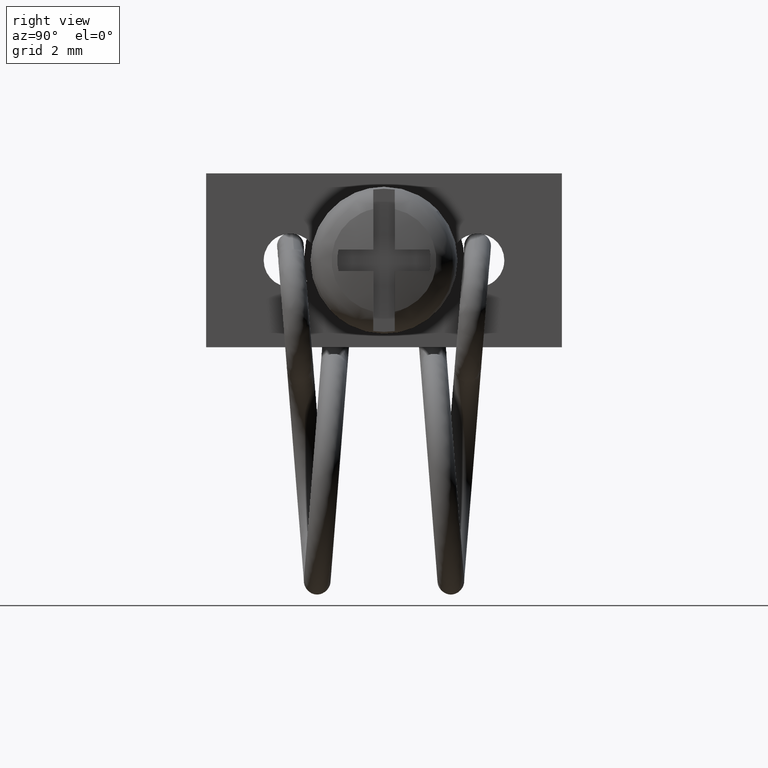
[diagram: clean part render]
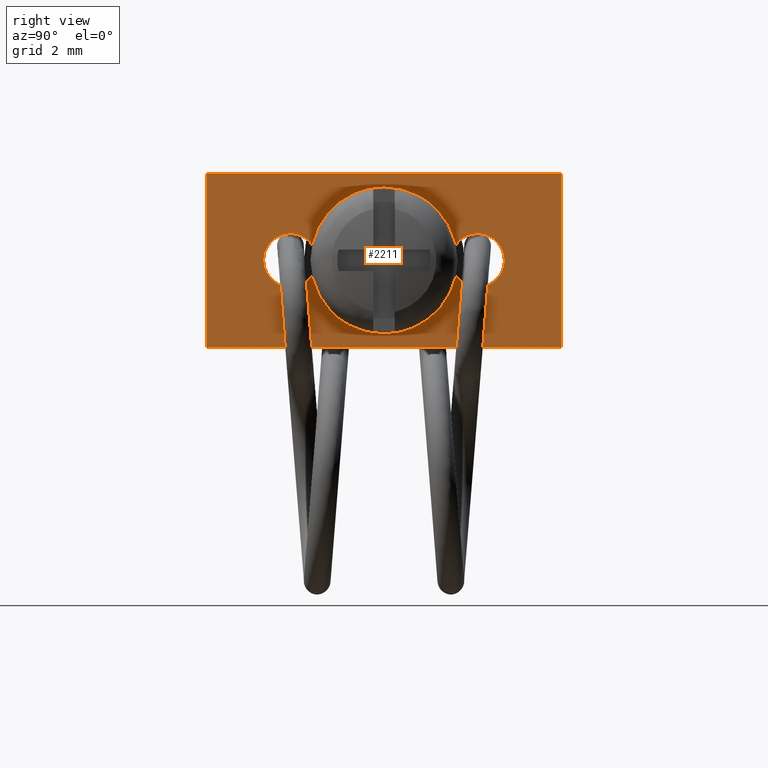
[diagram: same view with one face highlighted and labeled with its STEP entity id]
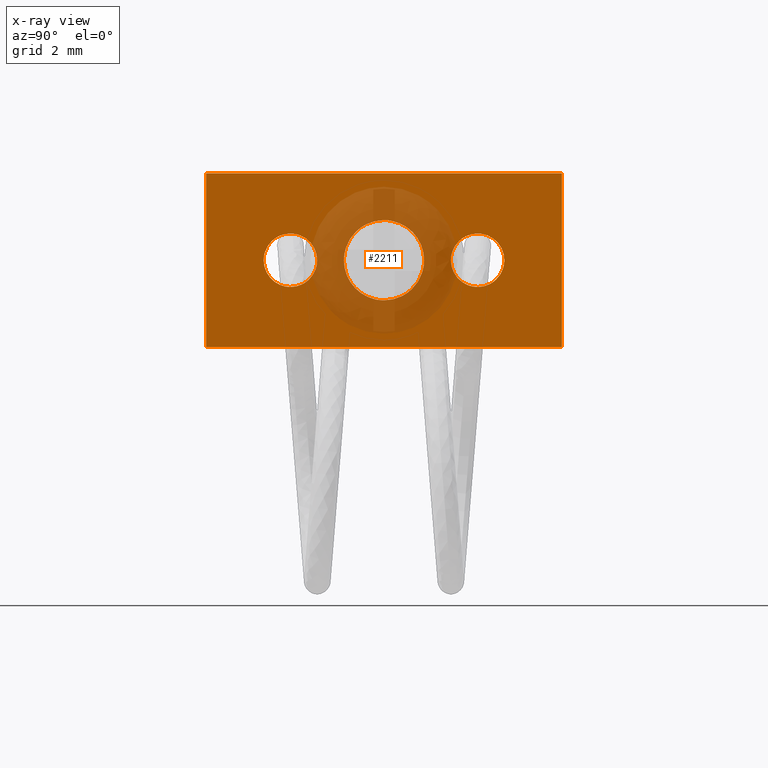
[diagram: x-ray of the same camera — body ghosted, the highlighted face saturated]
A machine part, right view. The second image highlights one B-rep face of the part: STEP entity #2211.
The next image is the same camera in x-ray: the body ghosted, the highlighted face saturated — about 22% of this face is hidden behind the body in this view.
In plain terms, the highlighted face is a freeform B-spline surface patch.
Its self-contained STEP definition (entity closure, byte-faithful):
#1553=CARTESIAN_POINT('',(-5.900000000000803,-1.032531800917459,1.088061519046354));
#1554=VERTEX_POINT('',#1553);
#1555=CARTESIAN_POINT('',(-5.900000000000000,-1.499999999999974,-0.000000281538430));
#1556=VERTEX_POINT('',#1555);
#1557=CARTESIAN_POINT('',(-5.900000000000803,-1.032531800917459,1.088061519046354));
#1558=CARTESIAN_POINT('',(-5.900000000000751,-1.101527649924507,1.022601850575404));
#1559=CARTESIAN_POINT('',(-5.900000000000656,-1.231182816334653,0.873691384280088));
#1560=CARTESIAN_POINT('',(-5.900000000000412,-1.386354415331849,0.602685362621365));
#1561=CARTESIAN_POINT('',(-5.900000000000290,-1.480044464424608,0.304338985804789));
#1562=CARTESIAN_POINT('',(-5.900000000000042,-1.500008408886573,0.095106643470198));
#1563=CARTESIAN_POINT('',(-5.900000000000000,-1.499999999999974,-0.000000281538430));
#1564=B_SPLINE_CURVE_WITH_KNOTS('',3,(#1557,#1558,#1559,#1560,#1561,#1562,#1563),.UNSPECIFIED.,.F.,.U.,(4,1,1,1,4),(7.158372E-009,0.285322418852800,0.589669938008324,0.932053386780087,1.217375582058588),.UNSPECIFIED.);
#1565=EDGE_CURVE('',#1554,#1556,#1564,.T.);
#1567=CARTESIAN_POINT('',(-5.900000000000000,0.0,-1.500000000000171));
#1568=VERTEX_POINT('',#1567);
#1569=CARTESIAN_POINT('',(-5.900000000000000,-1.499999999999974,-0.000000281538430));
#1570=CARTESIAN_POINT('',(-5.899999999999992,-1.500113129951142,-0.165688642252088));
#1571=CARTESIAN_POINT('',(-5.900000000000005,-1.461998231465147,-0.392646179399904));
#1572=CARTESIAN_POINT('',(-5.900000000000000,-1.339630095209663,-0.687975175501430));
#1573=CARTESIAN_POINT('',(-5.899999999999995,-1.189265077941649,-0.935499621042417));
#1574=CARTESIAN_POINT('',(-5.900000000000016,-0.955745503571000,-1.174807177737116));
#1575=CARTESIAN_POINT('',(-5.899999999999934,-0.683640507078563,-1.344742847117137));
#1576=CARTESIAN_POINT('',(-5.900000000000049,-0.374255342562318,-1.466285730741364));
#1577=CARTESIAN_POINT('',(-5.900000000000031,-0.147270636657687,-1.500063735951231));
#1578=CARTESIAN_POINT('',(-5.900000000000000,0.0,-1.500000000000171));
#1579=B_SPLINE_CURVE_WITH_KNOTS('',3,(#1569,#1570,#1571,#1572,#1573,#1574,#1575,#1576,#1577,#1578),.UNSPECIFIED.,.F.,.U.,(4,1,1,1,1,1,1,4),(0.000000025053693,0.497012994615959,0.681092243780764,0.957217229063044,1.362180125260239,1.675117438829984,1.914422860658952,2.356209115633355),.UNSPECIFIED.);
#1580=EDGE_CURVE('',#1556,#1568,#1579,.T.);
#1582=CARTESIAN_POINT('',(-5.900000000000803,1.032531800917457,-1.088061519046693));
#1583=VERTEX_POINT('',#1582);
#1584=CARTESIAN_POINT('',(-5.900000000000000,0.0,-1.500000000000171));
#1585=CARTESIAN_POINT('',(-5.900000000000067,0.088970957304148,-1.500007292996904));
#1586=CARTESIAN_POINT('',(-5.900000000000225,0.284704585115772,-1.482541028248960));
#1587=CARTESIAN_POINT('',(-5.900000000000445,0.565240062393512,-1.400457558483342));
#1588=CARTESIAN_POINT('',(-5.900000000000635,0.823325914155499,-1.263974881436297));
#1589=CARTESIAN_POINT('',(-5.900000000000764,0.967999326402683,-1.149310194513466));
#1590=CARTESIAN_POINT('',(-5.900000000000803,1.032531800917457,-1.088061519046693));
#1591=B_SPLINE_CURVE_WITH_KNOTS('',3,(#1584,#1585,#1586,#1587,#1588,#1589,#1590),.UNSPECIFIED.,.F.,.U.,(4,1,1,1,4),(6.853101E-009,0.266913979685582,0.587207004478607,0.871919995022012,1.138833967850329),.UNSPECIFIED.);
#1592=EDGE_CURVE('',#1568,#1583,#1591,.T.);
#1667=CARTESIAN_POINT('',(-5.900000000000000,0.0,1.499999999999830));
#1668=VERTEX_POINT('',#1667);
#1669=CARTESIAN_POINT('',(-5.900000000000000,0.0,1.499999999999830));
#1670=CARTESIAN_POINT('',(-5.900000000000101,-0.154221840855295,1.500070128594926));
#1671=CARTESIAN_POINT('',(-5.900000000000405,-0.432961032640828,1.456628925891329));
#1672=CARTESIAN_POINT('',(-5.900000000000511,-0.780205784643353,1.296090189713493));
#1673=CARTESIAN_POINT('',(-5.900000000000851,-0.959395056136502,1.157475241897096));
#1674=CARTESIAN_POINT('',(-5.900000000000803,-1.032531800917459,1.088061519046354));
#1675=B_SPLINE_CURVE_WITH_KNOTS('',3,(#1669,#1670,#1671,#1672,#1673,#1674),.UNSPECIFIED.,.F.,.U.,(4,1,1,4),(6.853131E-009,0.462652828332854,0.836330960184206,1.138833967850330),.UNSPECIFIED.);
#1676=EDGE_CURVE('',#1668,#1554,#1675,.T.);
#1718=CARTESIAN_POINT('',(-5.899999999999999,1.499999999999973,0.000000281538099));
#1719=VERTEX_POINT('',#1718);
#1720=CARTESIAN_POINT('',(-5.900000000000803,1.032531800917457,-1.088061519046693));
#1721=CARTESIAN_POINT('',(-5.900000000000740,1.124544997820483,-1.000795841743507));
#1722=CARTESIAN_POINT('',(-5.900000000000606,1.249813553790369,-0.847288819028382));
#1723=CARTESIAN_POINT('',(-5.900000000000447,1.395905679919325,-0.572233549231135));
#1724=CARTESIAN_POINT('',(-5.900000000000206,1.480047794116170,-0.304342473738232));
#1725=CARTESIAN_POINT('',(-5.900000000000081,1.500007790293664,-0.095105994079631));
#1726=CARTESIAN_POINT('',(-5.899999999999999,1.499999999999973,0.000000281538099));
#1727=B_SPLINE_CURVE_WITH_KNOTS('',3,(#1720,#1721,#1722,#1723,#1724,#1725,#1726),.UNSPECIFIED.,.F.,.U.,(4,1,1,1,4),(7.158386E-009,0.380430441980027,0.589669938008315,0.932053386780085,1.217375582058597),.UNSPECIFIED.);
#1728=EDGE_CURVE('',#1583,#1719,#1727,.T.);
#1730=CARTESIAN_POINT('',(-5.899999999999999,1.499999999999973,0.000000281538099));
#1731=CARTESIAN_POINT('',(-5.900000000000003,1.500025492281409,0.122719733121078));
#1732=CARTESIAN_POINT('',(-5.899999999999989,1.469721059824382,0.368146091902352));
#1733=CARTESIAN_POINT('',(-5.899999999999999,1.334019765282291,0.720007443469672));
#1734=CARTESIAN_POINT('',(-5.900000000000025,1.139959475334221,0.991969646787754));
#1735=CARTESIAN_POINT('',(-5.899999999999997,0.931300886420141,1.183378755435430));
#1736=CARTESIAN_POINT('',(-5.899999999999994,0.711336810732300,1.330375919988562));
#1737=CARTESIAN_POINT('',(-5.899999999999986,0.404943754818251,1.461741048439912));
#1738=CARTESIAN_POINT('',(-5.900000000000087,0.147266162218442,1.500058008964712));
#1739=CARTESIAN_POINT('',(-5.900000000000000,0.0,1.499999999999830));
#1740=B_SPLINE_CURVE_WITH_KNOTS('',3,(#1730,#1731,#1732,#1733,#1734,#1735,#1736,#1737,#1738,#1739),.UNSPECIFIED.,.F.,.U.,(4,1,1,1,1,1,1,4),(0.000000025053573,0.368155960645992,0.736316073314108,1.122886480859408,1.362180125260195,1.583074824194697,1.914422860658945,2.356209115633348),.UNSPECIFIED.);
#1741=EDGE_CURVE('',#1719,#1668,#1740,.T.);
#1764=CARTESIAN_POINT('',(-5.900000000000488,-4.188354499814766,0.725374324776658));
#1765=VERTEX_POINT('',#1764);
#1766=CARTESIAN_POINT('',(-5.900000000000000,-4.499999999999827,-0.000000343549312));
#1767=VERTEX_POINT('',#1766);
#1768=CARTESIAN_POINT('',(-5.900000000000488,-4.188354499814766,0.725374324776658));
#1769=CARTESIAN_POINT('',(-5.900000000000450,-4.249689536684660,0.667193565729395));
#1770=CARTESIAN_POINT('',(-5.900000000000340,-4.362879879740777,0.528563843574598));
#1771=CARTESIAN_POINT('',(-5.900000000000282,-4.473876496284183,0.278969692022571));
#1772=CARTESIAN_POINT('',(-5.900000000000014,-4.500033758980013,0.092995832441403));
#1773=CARTESIAN_POINT('',(-5.900000000000000,-4.499999999999827,-0.000000343549312));
#1774=B_SPLINE_CURVE_WITH_KNOTS('',3,(#1768,#1769,#1770,#1771,#1772,#1773),.UNSPECIFIED.,.F.,.U.,(4,1,1,4),(9.366627E-009,0.253620572618805,0.532601444876040,0.811583871569984),.UNSPECIFIED.);
#1775=EDGE_CURVE('',#1765,#1767,#1774,.T.);
#1777=CARTESIAN_POINT('',(-5.900000000000000,-3.499999999999885,-1.000000000000171));
#1778=VERTEX_POINT('',#1777);
#1779=CARTESIAN_POINT('',(-5.900000000000000,-4.499999999999827,-0.000000343549312));
#1780=CARTESIAN_POINT('',(-5.900000000000005,-4.500074509433024,-0.114548968431613));
#1781=CARTESIAN_POINT('',(-5.900000000000000,-4.469442475838013,-0.290389285907200));
#1782=CARTESIAN_POINT('',(-5.900000000000009,-4.367128258122630,-0.510115224464973));
#1783=CARTESIAN_POINT('',(-5.899999999999997,-4.253968072839474,-0.666688102428504));
#1784=CARTESIAN_POINT('',(-5.899999999999996,-4.118448136995123,-0.792568244273307));
#1785=CARTESIAN_POINT('',(-5.900000000000008,-3.945783254933528,-0.903423005496001));
#1786=CARTESIAN_POINT('',(-5.899999999999960,-3.741345048488410,-0.980841820175254));
#1787=CARTESIAN_POINT('',(-5.900000000000116,-3.577721393589572,-1.000011046889030));
#1788=CARTESIAN_POINT('',(-5.900000000000000,-3.499999999999885,-1.000000000000171));
#1789=B_SPLINE_CURVE_WITH_KNOTS('',3,(#1779,#1780,#1781,#1782,#1783,#1784,#1785,#1786,#1787,#1788),.UNSPECIFIED.,.F.,.U.,(4,1,1,1,1,1,1,4),(0.000000033026377,0.343613147978529,0.527695497369541,0.724044999240128,0.920386927904234,1.079928310418250,1.337640616899920,1.570805989246527),.UNSPECIFIED.);
#1790=EDGE_CURVE('',#1767,#1778,#1789,.T.);
#1792=CARTESIAN_POINT('',(-5.900000000000487,-2.811645500185004,-0.725374324776999));
#1793=VERTEX_POINT('',#1792);
#1794=CARTESIAN_POINT('',(-5.900000000000000,-3.499999999999885,-1.000000000000171));
#1795=CARTESIAN_POINT('',(-5.900000000000052,-3.436731413444246,-1.000006744993242));
#1796=CARTESIAN_POINT('',(-5.900000000000132,-3.306246635453463,-0.987574246568623));
#1797=CARTESIAN_POINT('',(-5.900000000000320,-3.062534604646685,-0.914715713213001));
#1798=CARTESIAN_POINT('',(-5.900000000000421,-2.900501499875649,-0.809848927340218));
#1799=CARTESIAN_POINT('',(-5.900000000000487,-2.811645500185004,-0.725374324776999));
#1800=B_SPLINE_CURVE_WITH_KNOTS('',3,(#1794,#1795,#1796,#1797,#1798,#1799),.UNSPECIFIED.,.F.,.U.,(4,1,1,4),(7.586175E-009,0.189805660773392,0.391469313936831,0.759222620335918),.UNSPECIFIED.);
#1801=EDGE_CURVE('',#1778,#1793,#1800,.T.);
#1874=CARTESIAN_POINT('',(-5.900000000000000,-3.499999999999885,0.999999999999830));
#1875=VERTEX_POINT('',#1874);
#1876=CARTESIAN_POINT('',(-5.900000000000000,-3.499999999999885,0.999999999999830));
#1877=CARTESIAN_POINT('',(-5.900000000000084,-3.610734478634641,1.000078033999905));
#1878=CARTESIAN_POINT('',(-5.900000000000182,-3.760940714517743,0.974778322932887));
#1879=CARTESIAN_POINT('',(-5.900000000000359,-3.995290167044273,0.878047338218306));
#1880=CARTESIAN_POINT('',(-5.900000000000429,-4.113808173209543,0.796189991569329));
#1881=CARTESIAN_POINT('',(-5.900000000000488,-4.188354499814766,0.725374324776658));
#1882=B_SPLINE_CURVE_WITH_KNOTS('',3,(#1876,#1877,#1878,#1879,#1880,#1881),.UNSPECIFIED.,.F.,.U.,(4,1,1,4),(7.585817E-009,0.332162865059740,0.450785343915043,0.759222620335917),.UNSPECIFIED.);
#1883=EDGE_CURVE('',#1875,#1765,#1882,.T.);
#1922=CARTESIAN_POINT('',(-5.900000000000000,-2.499999999999944,0.000000343548973));
#1923=VERTEX_POINT('',#1922);
#1924=CARTESIAN_POINT('',(-5.900000000000487,-2.811645500185004,-0.725374324776999));
#1925=CARTESIAN_POINT('',(-5.900000000000466,-2.756446161237571,-0.673008605341998));
#1926=CARTESIAN_POINT('',(-5.900000000000357,-2.658091981421731,-0.555601097799062));
#1927=CARTESIAN_POINT('',(-5.900000000000213,-2.534931473251847,-0.312743531985174));
#1928=CARTESIAN_POINT('',(-5.900000000000112,-2.499916351576212,-0.118368349830466));
#1929=CARTESIAN_POINT('',(-5.900000000000000,-2.499999999999944,0.000000343548973));
#1930=B_SPLINE_CURVE_WITH_KNOTS('',3,(#1924,#1925,#1926,#1927,#1928,#1929),.UNSPECIFIED.,.F.,.U.,(4,1,1,4),(9.366260E-009,0.228258538550818,0.456511866947610,0.811583871569985),.UNSPECIFIED.);
#1931=EDGE_CURVE('',#1793,#1923,#1930,.T.);
#1933=CARTESIAN_POINT('',(-5.900000000000000,-2.499999999999944,0.000000343548973));
#1934=CARTESIAN_POINT('',(-5.900000000000009,-2.499977203874772,0.085904025938715));
#1935=CARTESIAN_POINT('',(-5.899999999999999,-2.520154451848237,0.241336583840340));
#1936=CARTESIAN_POINT('',(-5.900000000000001,-2.606089414116434,0.468277289673905));
#1937=CARTESIAN_POINT('',(-5.900000000000012,-2.726335753053530,0.645876928777184));
#1938=CARTESIAN_POINT('',(-5.900000000000000,-2.875033562476947,0.787414618963979));
#1939=CARTESIAN_POINT('',(-5.899999999999980,-3.046501632699563,0.900500858671969));
#1940=CARTESIAN_POINT('',(-5.900000000000064,-3.258654422272546,0.980843480395017));
#1941=CARTESIAN_POINT('',(-5.899999999999923,-3.422278685790650,1.000011338273780));
#1942=CARTESIAN_POINT('',(-5.900000000000000,-3.499999999999885,0.999999999999830));
#1943=B_SPLINE_CURVE_WITH_KNOTS('',3,(#1933,#1934,#1935,#1936,#1937,#1938,#1939,#1940,#1941,#1942),.UNSPECIFIED.,.F.,.U.,(4,1,1,1,1,1,1,4),(0.000000033025584,0.257708460470113,0.466333887687882,0.724044999239874,0.895843853950155,1.079928310418274,1.337640616899996,1.570805989246522),.UNSPECIFIED.);
#1944=EDGE_CURVE('',#1923,#1875,#1943,.T.);
#1967=CARTESIAN_POINT('',(-5.900000000000488,2.811645500184919,0.725374324776658));
#1968=VERTEX_POINT('',#1967);
#1969=CARTESIAN_POINT('',(-5.900000000000000,2.499999999999859,-0.000000343549312));
#1970=VERTEX_POINT('',#1969);
#1971=CARTESIAN_POINT('',(-5.900000000000488,2.811645500184919,0.725374324776658));
#1972=CARTESIAN_POINT('',(-5.900000000000444,2.741088084935385,0.658480716990746));
#1973=CARTESIAN_POINT('',(-5.900000000000366,2.643529522642246,0.534125515064444));
#1974=CARTESIAN_POINT('',(-5.900000000000177,2.529999190188948,0.287385964991862));
#1975=CARTESIAN_POINT('',(-5.900000000000088,2.499927692283522,0.114140050414727));
#1976=CARTESIAN_POINT('',(-5.900000000000000,2.499999999999859,-0.000000343549312));
#1977=B_SPLINE_CURVE_WITH_KNOTS('',3,(#1971,#1972,#1973,#1974,#1975,#1976),.UNSPECIFIED.,.F.,.U.,(4,1,1,4),(9.366066E-009,0.291665241989367,0.469196603076377,0.811583871569986),.UNSPECIFIED.);
#1978=EDGE_CURVE('',#1968,#1970,#1977,.T.);
#1980=CARTESIAN_POINT('',(-5.900000000000000,3.499999999999800,-1.000000000000171));
#1981=VERTEX_POINT('',#1980);
#1982=CARTESIAN_POINT('',(-5.900000000000000,2.499999999999859,-0.000000343549312));
#1983=CARTESIAN_POINT('',(-5.899999999999998,2.499975831431541,-0.085904185035686));
#1984=CARTESIAN_POINT('',(-5.900000000000011,2.520156771286661,-0.241335944868297));
#1985=CARTESIAN_POINT('',(-5.900000000000010,2.606086827757595,-0.468278825903413));
#1986=CARTESIAN_POINT('',(-5.899999999999966,2.721713368889040,-0.639044523746110));
#1987=CARTESIAN_POINT('',(-5.900000000000029,2.865579410179393,-0.779393763892916));
#1988=CARTESIAN_POINT('',(-5.899999999999997,3.038422053582082,-0.898022641808826));
#1989=CARTESIAN_POINT('',(-5.899999999999955,3.258648441573226,-0.981420135895170));
#1990=CARTESIAN_POINT('',(-5.900000000000070,3.426372028223965,-1.000007343524002));
#1991=CARTESIAN_POINT('',(-5.900000000000000,3.499999999999800,-1.000000000000171));
#1992=B_SPLINE_CURVE_WITH_KNOTS('',3,(#1982,#1983,#1984,#1985,#1986,#1987,#1988,#1989,#1990,#1991),.UNSPECIFIED.,.F.,.U.,(4,1,1,1,1,1,1,4),(0.000000033027343,0.257708460471478,0.466333887688926,0.724044999240539,0.871302861916949,1.067654287903043,1.349916367647245,1.570805989246523),.UNSPECIFIED.);
#1993=EDGE_CURVE('',#1970,#1981,#1992,.T.);
#1995=CARTESIAN_POINT('',(-5.900000000000487,4.188354499814681,-0.725374324776999));
#1996=VERTEX_POINT('',#1995);
#1997=CARTESIAN_POINT('',(-5.900000000000000,3.499999999999800,-1.000000000000171));
#1998=CARTESIAN_POINT('',(-5.900000000000075,3.610731917005736,-1.000077359513360));
#1999=CARTESIAN_POINT('',(-5.900000000000206,3.788620484140191,-0.970125903623753));
#2000=CARTESIAN_POINT('',(-5.900000000000368,4.019505724401121,-0.863382971464794));
#2001=CARTESIAN_POINT('',(-5.900000000000454,4.133865367014292,-0.777102722691270));
#2002=CARTESIAN_POINT('',(-5.900000000000487,4.188354499814681,-0.725374324776999));
#2003=B_SPLINE_CURVE_WITH_KNOTS('',3,(#1997,#1998,#1999,#2000,#2001,#2002),.UNSPECIFIED.,.F.,.U.,(4,1,1,4),(7.586083E-009,0.332162865059857,0.533827603715670,0.759222620335917),.UNSPECIFIED.);
#2004=EDGE_CURVE('',#1981,#1996,#2003,.T.);
#2076=CARTESIAN_POINT('',(-5.900000000000000,3.499999999999800,0.999999999999830));
#2077=VERTEX_POINT('',#2076);
#2078=CARTESIAN_POINT('',(-5.900000000000000,3.499999999999800,0.999999999999830));
#2079=CARTESIAN_POINT('',(-5.900000000000074,3.389267567970979,1.000071608034084));
#2080=CARTESIAN_POINT('',(-5.900000000000222,3.227195369423242,0.972788642219558));
#2081=CARTESIAN_POINT('',(-5.900000000000314,2.994331346145949,0.871763201088112));
#2082=CARTESIAN_POINT('',(-5.900000000000461,2.877596032473563,0.788007457064408));
#2083=CARTESIAN_POINT('',(-5.900000000000488,2.811645500184919,0.725374324776658));
#2084=B_SPLINE_CURVE_WITH_KNOTS('',3,(#2078,#2079,#2080,#2081,#2082,#2083),.UNSPECIFIED.,.F.,.U.,(4,1,1,4),(7.586267E-009,0.332162865059922,0.486376411934052,0.759222620335918),.UNSPECIFIED.);
#2085=EDGE_CURVE('',#2077,#1968,#2084,.T.);
#2125=CARTESIAN_POINT('',(-5.900000000000000,4.499999999999742,0.000000343548973));
#2126=VERTEX_POINT('',#2125);
#2127=CARTESIAN_POINT('',(-5.900000000000487,4.188354499814681,-0.725374324776999));
#2128=CARTESIAN_POINT('',(-5.900000000000453,4.255832461450828,-0.661383099001871));
#2129=CARTESIAN_POINT('',(-5.900000000000337,4.372736749221474,-0.514397769155405));
#2130=CARTESIAN_POINT('',(-5.900000000000188,4.477367196223113,-0.262069327116357));
#2131=CARTESIAN_POINT('',(-5.900000000000048,4.500020574126319,-0.084540068476779));
#2132=CARTESIAN_POINT('',(-5.900000000000000,4.499999999999742,0.000000343548973));
#2133=B_SPLINE_CURVE_WITH_KNOTS('',3,(#2127,#2128,#2129,#2130,#2131,#2132),.UNSPECIFIED.,.F.,.U.,(4,1,1,4),(9.366257E-009,0.278982436062842,0.557963308312114,0.811583871569990),.UNSPECIFIED.);
#2134=EDGE_CURVE('',#1996,#2126,#2133,.T.);
#2136=CARTESIAN_POINT('',(-5.900000000000000,4.499999999999742,0.000000343548973));
#2137=CARTESIAN_POINT('',(-5.900000000000008,4.500027380784304,0.085905881767606));
#2138=CARTESIAN_POINT('',(-5.899999999999991,4.481960564791263,0.224971671506754));
#2139=CARTESIAN_POINT('',(-5.900000000000003,4.416737795194372,0.410838030810209));
#2140=CARTESIAN_POINT('',(-5.900000000000000,4.327655344065567,0.572700849135777));
#2141=CARTESIAN_POINT('',(-5.899999999999999,4.187232587899847,0.739618999053126));
#2142=CARTESIAN_POINT('',(-5.899999999999976,4.014176912609188,0.866320121082599));
#2143=CARTESIAN_POINT('',(-5.900000000000029,3.782201479592014,0.970847321945648));
#2144=CARTESIAN_POINT('',(-5.900000000000053,3.614552999587171,1.000090163868991));
#2145=CARTESIAN_POINT('',(-5.900000000000000,3.499999999999800,0.999999999999830));
#2146=B_SPLINE_CURVE_WITH_KNOTS('',3,(#2136,#2137,#2138,#2139,#2140,#2141,#2142,#2143,#2144,#2145),.UNSPECIFIED.,.F.,.U.,(4,1,1,1,1,1,1,4),(0.000000033025517,0.257708460469986,0.417246048961678,0.589057441331798,0.809940873903191,1.067654287902713,1.227193092528808,1.570805989246526),.UNSPECIFIED.);
#2147=EDGE_CURVE('',#2126,#2077,#2146,.T.);
#2152=CARTESIAN_POINT('',(-5.900000000000000,-7.314334974222019,3.574674987401674));
#2153=CARTESIAN_POINT('',(-5.900000000000000,7.314335330955819,3.574674987401674));
#2154=CARTESIAN_POINT('',(-5.900000000000000,-7.314334974222019,-3.574675161745499));
#2155=CARTESIAN_POINT('',(-5.900000000000000,7.314335330955819,-3.574675161745499));
#2156=B_SPLINE_SURFACE_WITH_KNOTS('',1,1,((#2152,#2154),(#2153,#2155)),.UNSPECIFIED.,.F.,.F.,.U.,(2,2),(2,2),(0.0,14.628670305177840),(0.0,7.149350149147173),.UNSPECIFIED.);
#2157=CARTESIAN_POINT('',(-5.900000000000000,-6.650000000000000,3.249999999999930));
#2158=VERTEX_POINT('',#2157);
#2159=CARTESIAN_POINT('',(-5.900000000000000,-6.650000000000000,-3.250000000000170));
#2160=VERTEX_POINT('',#2159);
#2161=CARTESIAN_POINT('',(-5.900000000000000,-6.650000000000000,3.249999999999930));
#2162=CARTESIAN_POINT('',(-5.900000000000000,-6.650000000000000,-3.250000000000170));
#2163=QUASI_UNIFORM_CURVE('',1,(#2161,#2162),.UNSPECIFIED.,.F.,.U.);
#2164=EDGE_CURVE('',#2158,#2160,#2163,.T.);
#2165=ORIENTED_EDGE('',*,*,#2164,.T.);
#2166=CARTESIAN_POINT('',(-5.900000000000000,6.650000000000000,-3.250000000000170));
#2167=VERTEX_POINT('',#2166);
#2168=CARTESIAN_POINT('',(-5.900000000000000,-6.650000000000000,-3.250000000000170));
#2169=CARTESIAN_POINT('',(-5.900000000000000,6.650000000000000,-3.250000000000170));
#2170=QUASI_UNIFORM_CURVE('',1,(#2168,#2169),.UNSPECIFIED.,.F.,.U.);
#2171=EDGE_CURVE('',#2160,#2167,#2170,.T.);
#2172=ORIENTED_EDGE('',*,*,#2171,.T.);
#2173=CARTESIAN_POINT('',(-5.900000000000000,6.650000000000000,3.249999999999930));
#2174=VERTEX_POINT('',#2173);
#2175=CARTESIAN_POINT('',(-5.900000000000000,6.650000000000000,-3.250000000000170));
#2176=CARTESIAN_POINT('',(-5.900000000000000,6.650000000000000,3.249999999999930));
#2177=QUASI_UNIFORM_CURVE('',1,(#2175,#2176),.UNSPECIFIED.,.F.,.U.);
#2178=EDGE_CURVE('',#2167,#2174,#2177,.T.);
#2179=ORIENTED_EDGE('',*,*,#2178,.T.);
#2180=CARTESIAN_POINT('',(-5.900000000000000,6.650000000000000,3.249999999999930));
#2181=CARTESIAN_POINT('',(-5.900000000000000,-6.650000000000000,3.249999999999930));
#2182=QUASI_UNIFORM_CURVE('',1,(#2180,#2181),.UNSPECIFIED.,.F.,.U.);
#2183=EDGE_CURVE('',#2174,#2158,#2182,.T.);
#2184=ORIENTED_EDGE('',*,*,#2183,.T.);
#2185=EDGE_LOOP('',(#2165,#2172,#2179,#2184));
#2186=FACE_OUTER_BOUND('',#2185,.T.);
#2187=ORIENTED_EDGE('',*,*,#1993,.F.);
#2188=ORIENTED_EDGE('',*,*,#1978,.F.);
#2189=ORIENTED_EDGE('',*,*,#2085,.F.);
#2190=ORIENTED_EDGE('',*,*,#2147,.F.);
#2191=ORIENTED_EDGE('',*,*,#2134,.F.);
#2192=ORIENTED_EDGE('',*,*,#2004,.F.);
#2193=EDGE_LOOP('',(#2187,#2188,#2189,#2190,#2191,#2192));
#2194=FACE_BOUND('',#2193,.T.);
#2195=ORIENTED_EDGE('',*,*,#1790,.F.);
#2196=ORIENTED_EDGE('',*,*,#1775,.F.);
#2197=ORIENTED_EDGE('',*,*,#1883,.F.);
#2198=ORIENTED_EDGE('',*,*,#1944,.F.);
#2199=ORIENTED_EDGE('',*,*,#1931,.F.);
#2200=ORIENTED_EDGE('',*,*,#1801,.F.);
#2201=EDGE_LOOP('',(#2195,#2196,#2197,#2198,#2199,#2200));
#2202=FACE_BOUND('',#2201,.T.);
#2203=ORIENTED_EDGE('',*,*,#1580,.F.);
#2204=ORIENTED_EDGE('',*,*,#1565,.F.);
#2205=ORIENTED_EDGE('',*,*,#1676,.F.);
#2206=ORIENTED_EDGE('',*,*,#1741,.F.);
#2207=ORIENTED_EDGE('',*,*,#1728,.F.);
#2208=ORIENTED_EDGE('',*,*,#1592,.F.);
#2209=EDGE_LOOP('',(#2203,#2204,#2205,#2206,#2207,#2208));
#2210=FACE_BOUND('',#2209,.T.);
#2211=ADVANCED_FACE('',(#2186,#2194,#2202,#2210),#2156,.F.);